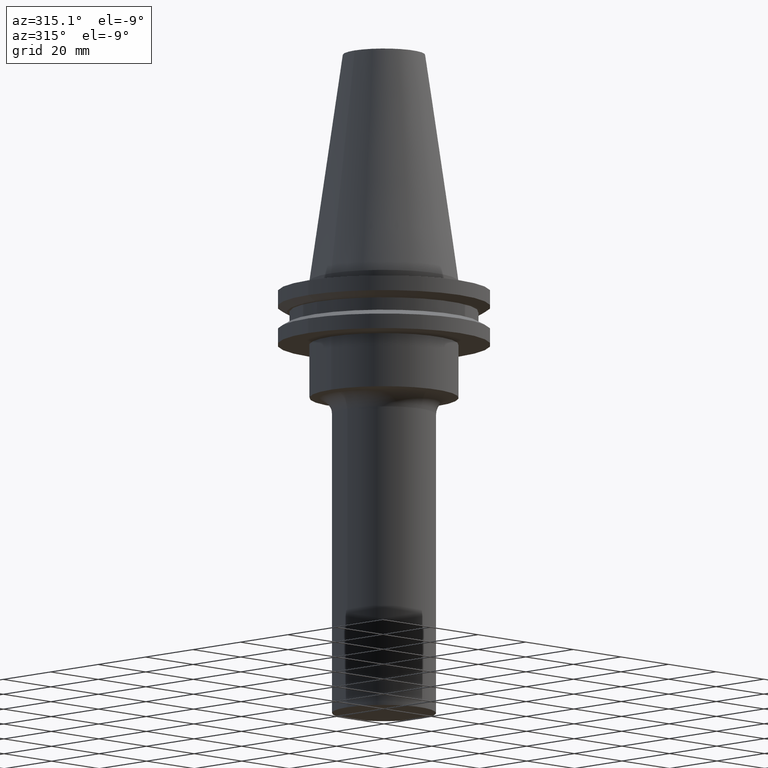
[diagram: clean part render]
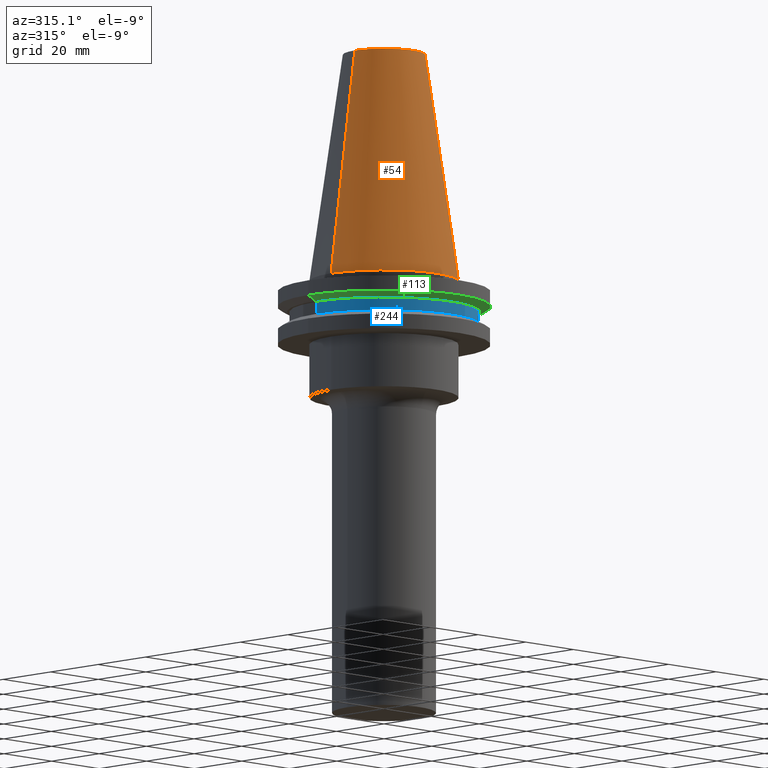
[diagram: same view with three faces highlighted in distinct colors, each labeled with its STEP entity id]
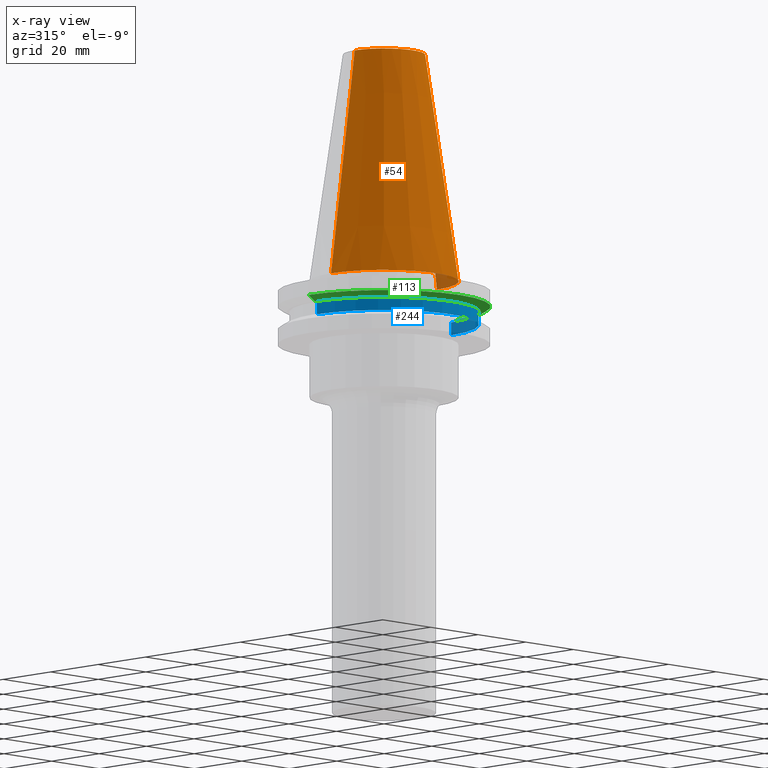
[diagram: x-ray of the same camera — body ghosted, the three highlighted faces saturated]
A machine part, auxiliary view with three faces highlighted in distinct colors.
The next image is the same camera in x-ray (body ghosted, the three faces saturated) — at least one of them is partly hidden behind the body in this view.
Their STEP definitions:

[orange] entity #54 — the highlighted conical surface has half-angle 8.297 deg.
#40 = VERTEX_POINT ( 'NONE', #196 ) ;
#54 = ADVANCED_FACE ( 'NONE', ( #85 ), #772, .T. ) ;
#81 = DIRECTION ( 'NONE',  ( 1.000000000000000000, 0.000000000000000000, 0.000000000000000000 ) ) ;
#84 = DIRECTION ( 'NONE',  ( -0.1443082272672999711, 0.000000000000000000, -0.9895327864921755756 ) ) ;
#85 = FACE_OUTER_BOUND ( 'NONE', #149, .T. ) ;
#110 = CARTESIAN_POINT ( 'NONE',  ( 22.22500000000000142, 2.721777511104992849E-15, 0.000000000000000000 ) ) ;
#149 = EDGE_LOOP ( 'NONE', ( #310, #367, #639, #704 ) ) ;
#159 = VERTEX_POINT ( 'NONE', #616 ) ;
#194 = CIRCLE ( 'NONE', #464, 12.27178102086201150 ) ;
#196 = CARTESIAN_POINT ( 'NONE',  ( 12.27178102086201150, 2.112318622904291439E-15, 68.25000000000000000 ) ) ;
#208 = DIRECTION ( 'NONE',  ( 0.000000000000000000, 0.000000000000000000, -1.000000000000000000 ) ) ;
#254 = EDGE_CURVE ( 'NONE', #777, #600, #391, .T. ) ;
#282 = CARTESIAN_POINT ( 'NONE',  ( -12.27178102086201150, 0.000000000000000000, 68.25000000000000000 ) ) ;
#310 = ORIENTED_EDGE ( 'NONE', *, *, #422, .F. ) ;
#325 = DIRECTION ( 'NONE',  ( 1.000000000000000000, 0.000000000000000000, 0.000000000000000000 ) ) ;
#326 = AXIS2_PLACEMENT_3D ( 'NONE', #376, #678, #325 ) ;
#328 = CARTESIAN_POINT ( 'NONE',  ( 0.000000000000000000, 0.000000000000000000, 68.25000000000000000 ) ) ;
#356 = DIRECTION ( 'NONE',  ( 0.1443082272672999711, 1.767266086135276757E-17, -0.9895327864921755756 ) ) ;
#367 = ORIENTED_EDGE ( 'NONE', *, *, #527, .F. ) ;
#376 = CARTESIAN_POINT ( 'NONE',  ( 0.000000000000000000, 0.000000000000000000, 0.000000000000000000 ) ) ;
#381 = CARTESIAN_POINT ( 'NONE',  ( 0.000000000000000000, 0.000000000000000000, 0.000000000000000000 ) ) ;
#391 = LINE ( 'NONE', #744, #457 ) ;
#422 = EDGE_CURVE ( 'NONE', #40, #159, #654, .T. ) ;
#457 = VECTOR ( 'NONE', #84, 999.9999999999998863 ) ;
#464 = AXIS2_PLACEMENT_3D ( 'NONE', #328, #760, #81 ) ;
#518 = CIRCLE ( 'NONE', #326, 22.22500000000000142 ) ;
#527 = EDGE_CURVE ( 'NONE', #777, #40, #194, .T. ) ;
#575 = VECTOR ( 'NONE', #356, 999.9999999999998863 ) ;
#600 = VERTEX_POINT ( 'NONE', #629 ) ;
#616 = CARTESIAN_POINT ( 'NONE',  ( 22.22500000000000142, 2.721777511104992849E-15, 0.000000000000000000 ) ) ;
#629 = CARTESIAN_POINT ( 'NONE',  ( -22.22500000000000142, 0.000000000000000000, 0.000000000000000000 ) ) ;
#637 = AXIS2_PLACEMENT_3D ( 'NONE', #381, #208, #660 ) ;
#639 = ORIENTED_EDGE ( 'NONE', *, *, #254, .T. ) ;
#654 = LINE ( 'NONE', #110, #575 ) ;
#660 = DIRECTION ( 'NONE',  ( -1.000000000000000000, 0.000000000000000000, 0.000000000000000000 ) ) ;
#678 = DIRECTION ( 'NONE',  ( -0.000000000000000000, -0.000000000000000000, 1.000000000000000000 ) ) ;
#704 = ORIENTED_EDGE ( 'NONE', *, *, #707, .T. ) ;
#707 = EDGE_CURVE ( 'NONE', #600, #159, #518, .T. ) ;
#744 = CARTESIAN_POINT ( 'NONE',  ( -22.22500000000000142, 0.000000000000000000, 0.000000000000000000 ) ) ;
#760 = DIRECTION ( 'NONE',  ( -0.000000000000000000, -0.000000000000000000, 1.000000000000000000 ) ) ;
#772 = CONICAL_SURFACE ( 'NONE', #637, 22.22500000000000142, 0.1448138465474119174 ) ;
#777 = VERTEX_POINT ( 'NONE', #282 ) ;

[blue] entity #244 — the highlighted cylindrical surface (partial cylindrical patch) has radius 28.18 mm, axis along (-0, -0, 1).
#18 = AXIS2_PLACEMENT_3D ( 'NONE', #549, #436, #145 ) ;
#88 = EDGE_CURVE ( 'NONE', #417, #343, #595, .T. ) ;
#92 = ORIENTED_EDGE ( 'NONE', *, *, #425, .F. ) ;
#111 = ORIENTED_EDGE ( 'NONE', *, *, #596, .F. ) ;
#119 = DIRECTION ( 'NONE',  ( -0.000000000000000000, -0.000000000000000000, 1.000000000000000000 ) ) ;
#128 = AXIS2_PLACEMENT_3D ( 'NONE', #435, #156, #547 ) ;
#145 = DIRECTION ( 'NONE',  ( 1.000000000000000000, 0.000000000000000000, 0.000000000000000000 ) ) ;
#156 = DIRECTION ( 'NONE',  ( -0.000000000000000000, -0.000000000000000000, 1.000000000000000000 ) ) ;
#230 = EDGE_LOOP ( 'NONE', ( #92, #453, #615, #111 ) ) ;
#235 = DIRECTION ( 'NONE',  ( -0.000000000000000000, -0.000000000000000000, 1.000000000000000000 ) ) ;
#244 = ADVANCED_FACE ( 'NONE', ( #726 ), #375, .T. ) ;
#297 = LINE ( 'NONE', #712, #641 ) ;
#343 = VERTEX_POINT ( 'NONE', #717 ) ;
#346 = VECTOR ( 'NONE', #235, 1000.000000000000000 ) ;
#375 = CYLINDRICAL_SURFACE ( 'NONE', #128, 28.17999999999999972 ) ;
#410 = VERTEX_POINT ( 'NONE', #421 ) ;
#417 = VERTEX_POINT ( 'NONE', #656 ) ;
#421 = CARTESIAN_POINT ( 'NONE',  ( 28.17999999999999972, 0.000000000000000000, -9.204999999999991189 ) ) ;
#425 = EDGE_CURVE ( 'NONE', #417, #552, #770, .T. ) ;
#435 = CARTESIAN_POINT ( 'NONE',  ( 0.000000000000000000, 0.000000000000000000, 68.25000000000000000 ) ) ;
#436 = DIRECTION ( 'NONE',  ( -0.000000000000000000, -0.000000000000000000, 1.000000000000000000 ) ) ;
#441 = DIRECTION ( 'NONE',  ( -0.000000000000000000, -0.000000000000000000, 1.000000000000000000 ) ) ;
#451 = EDGE_CURVE ( 'NONE', #343, #410, #297, .T. ) ;
#453 = ORIENTED_EDGE ( 'NONE', *, *, #88, .T. ) ;
#547 = DIRECTION ( 'NONE',  ( 1.000000000000000000, 0.000000000000000000, 0.000000000000000000 ) ) ;
#549 = CARTESIAN_POINT ( 'NONE',  ( 0.000000000000000000, 0.000000000000000000, -13.05499999999999794 ) ) ;
#552 = VERTEX_POINT ( 'NONE', #694 ) ;
#587 = CARTESIAN_POINT ( 'NONE',  ( -28.17999999999999972, 3.451054679997241634E-15, 68.25000000000000000 ) ) ;
#595 = CIRCLE ( 'NONE', #18, 28.17999999999999972 ) ;
#596 = EDGE_CURVE ( 'NONE', #552, #410, #718, .T. ) ;
#615 = ORIENTED_EDGE ( 'NONE', *, *, #451, .T. ) ;
#641 = VECTOR ( 'NONE', #119, 1000.000000000000000 ) ;
#656 = CARTESIAN_POINT ( 'NONE',  ( -28.17999999999999972, 3.451054679997241634E-15, -13.05499999999999794 ) ) ;
#687 = DIRECTION ( 'NONE',  ( 1.000000000000000000, 0.000000000000000000, 0.000000000000000000 ) ) ;
#694 = CARTESIAN_POINT ( 'NONE',  ( -28.17999999999999972, 3.451054679997241634E-15, -9.204999999999991189 ) ) ;
#697 = AXIS2_PLACEMENT_3D ( 'NONE', #742, #441, #687 ) ;
#712 = CARTESIAN_POINT ( 'NONE',  ( 28.17999999999999972, 0.000000000000000000, 68.25000000000000000 ) ) ;
#717 = CARTESIAN_POINT ( 'NONE',  ( 28.17999999999999972, 0.000000000000000000, -13.05499999999999794 ) ) ;
#718 = CIRCLE ( 'NONE', #697, 28.17999999999999972 ) ;
#726 = FACE_OUTER_BOUND ( 'NONE', #230, .T. ) ;
#742 = CARTESIAN_POINT ( 'NONE',  ( 0.000000000000000000, 0.000000000000000000, -9.204999999999991189 ) ) ;
#770 = LINE ( 'NONE', #587, #346 ) ;

[green] entity #113 — the highlighted conical surface has half-angle 60 deg.
#12 = DIRECTION ( 'NONE',  ( 1.000000000000000000, 0.000000000000000000, 0.000000000000000000 ) ) ;
#21 = LINE ( 'NONE', #740, #236 ) ;
#32 = CIRCLE ( 'NONE', #570, 31.75000000000000000 ) ;
#90 = DIRECTION ( 'NONE',  ( -0.000000000000000000, -0.000000000000000000, 1.000000000000000000 ) ) ;
#102 = ORIENTED_EDGE ( 'NONE', *, *, #682, .F. ) ;
#113 = ADVANCED_FACE ( 'NONE', ( #556 ), #313, .T. ) ;
#123 = CARTESIAN_POINT ( 'NONE',  ( 0.000000000000000000, 0.000000000000000000, -9.205000000000005400 ) ) ;
#138 = DIRECTION ( 'NONE',  ( -0.000000000000000000, -0.000000000000000000, 1.000000000000000000 ) ) ;
#144 = CARTESIAN_POINT ( 'NONE',  ( 0.000000000000000000, 0.000000000000000000, -9.205000000000005400 ) ) ;
#148 = AXIS2_PLACEMENT_3D ( 'NONE', #144, #90, #568 ) ;
#167 = CARTESIAN_POINT ( 'NONE',  ( 28.97919780457007732, 0.000000000000000000, -9.205000000000005400 ) ) ;
#233 = EDGE_LOOP ( 'NONE', ( #420, #676, #505, #102 ) ) ;
#236 = VECTOR ( 'NONE', #686, 1000.000000000000000 ) ;
#245 = VERTEX_POINT ( 'NONE', #621 ) ;
#276 = CIRCLE ( 'NONE', #148, 28.97919780457007732 ) ;
#313 = CONICAL_SURFACE ( 'NONE', #721, 28.97919780457007732, 1.047197551196598297 ) ;
#323 = VERTEX_POINT ( 'NONE', #731 ) ;
#327 = DIRECTION ( 'NONE',  ( -0.000000000000000000, -0.000000000000000000, 1.000000000000000000 ) ) ;
#384 = VERTEX_POINT ( 'NONE', #437 ) ;
#396 = DIRECTION ( 'NONE',  ( 1.000000000000000000, 0.000000000000000000, 0.000000000000000000 ) ) ;
#404 = DIRECTION ( 'NONE',  ( 0.8660254037844389297, 0.000000000000000000, 0.4999999999999995004 ) ) ;
#420 = ORIENTED_EDGE ( 'NONE', *, *, #725, .F. ) ;
#437 = CARTESIAN_POINT ( 'NONE',  ( -31.75000000000000000, 3.888253587292846476E-15, -7.605276606597335842 ) ) ;
#455 = LINE ( 'NONE', #167, #604 ) ;
#502 = CARTESIAN_POINT ( 'NONE',  ( 31.75000000000000000, 0.000000000000000000, -7.605276606597335842 ) ) ;
#505 = ORIENTED_EDGE ( 'NONE', *, *, #612, .T. ) ;
#555 = CARTESIAN_POINT ( 'NONE',  ( 0.000000000000000000, 0.000000000000000000, -7.605276606597335842 ) ) ;
#556 = FACE_OUTER_BOUND ( 'NONE', #233, .T. ) ;
#568 = DIRECTION ( 'NONE',  ( 1.000000000000000000, 0.000000000000000000, 0.000000000000000000 ) ) ;
#570 = AXIS2_PLACEMENT_3D ( 'NONE', #555, #138, #396 ) ;
#604 = VECTOR ( 'NONE', #404, 1000.000000000000000 ) ;
#612 = EDGE_CURVE ( 'NONE', #323, #755, #455, .T. ) ;
#621 = CARTESIAN_POINT ( 'NONE',  ( -28.97919780457007732, 3.718590885307660666E-15, -9.205000000000005400 ) ) ;
#676 = ORIENTED_EDGE ( 'NONE', *, *, #679, .T. ) ;
#679 = EDGE_CURVE ( 'NONE', #245, #323, #276, .T. ) ;
#682 = EDGE_CURVE ( 'NONE', #384, #755, #32, .T. ) ;
#686 = DIRECTION ( 'NONE',  ( -0.8660254037844389297, 1.060575238724907285E-16, 0.4999999999999995004 ) ) ;
#721 = AXIS2_PLACEMENT_3D ( 'NONE', #123, #327, #12 ) ;
#725 = EDGE_CURVE ( 'NONE', #245, #384, #21, .T. ) ;
#731 = CARTESIAN_POINT ( 'NONE',  ( 28.97919780457007732, 0.000000000000000000, -9.205000000000005400 ) ) ;
#740 = CARTESIAN_POINT ( 'NONE',  ( -28.97919780457007732, 3.548928183322474856E-15, -9.205000000000005400 ) ) ;
#755 = VERTEX_POINT ( 'NONE', #502 ) ;